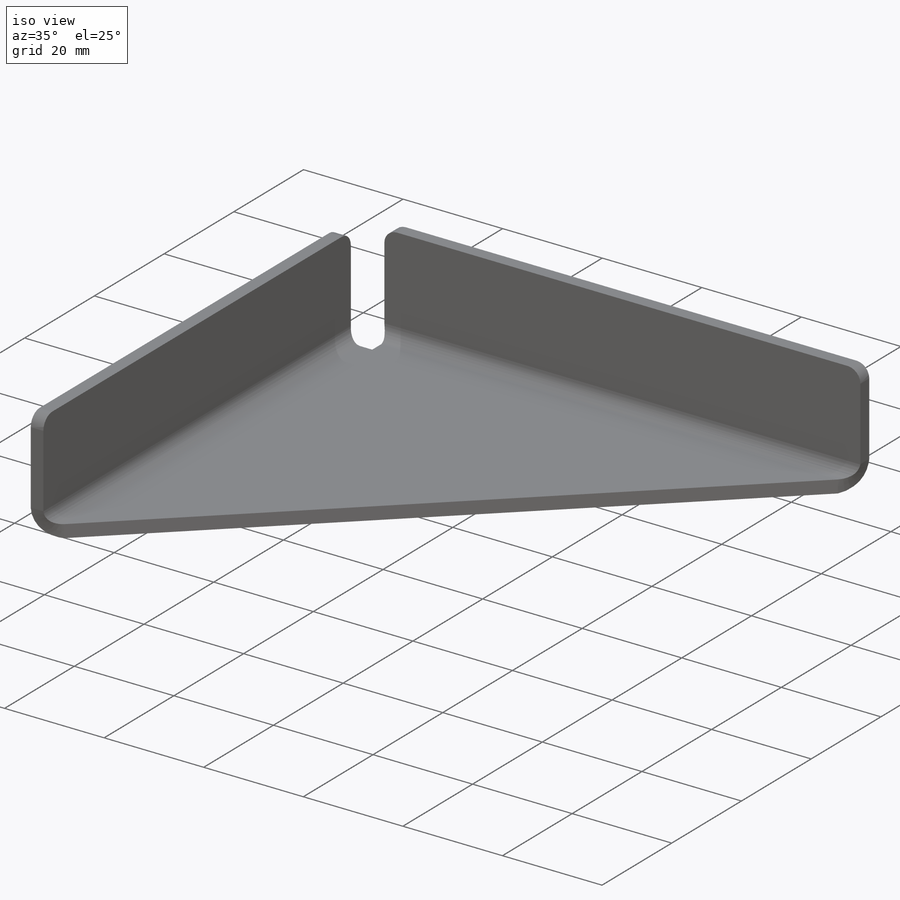
[diagram: iso view]
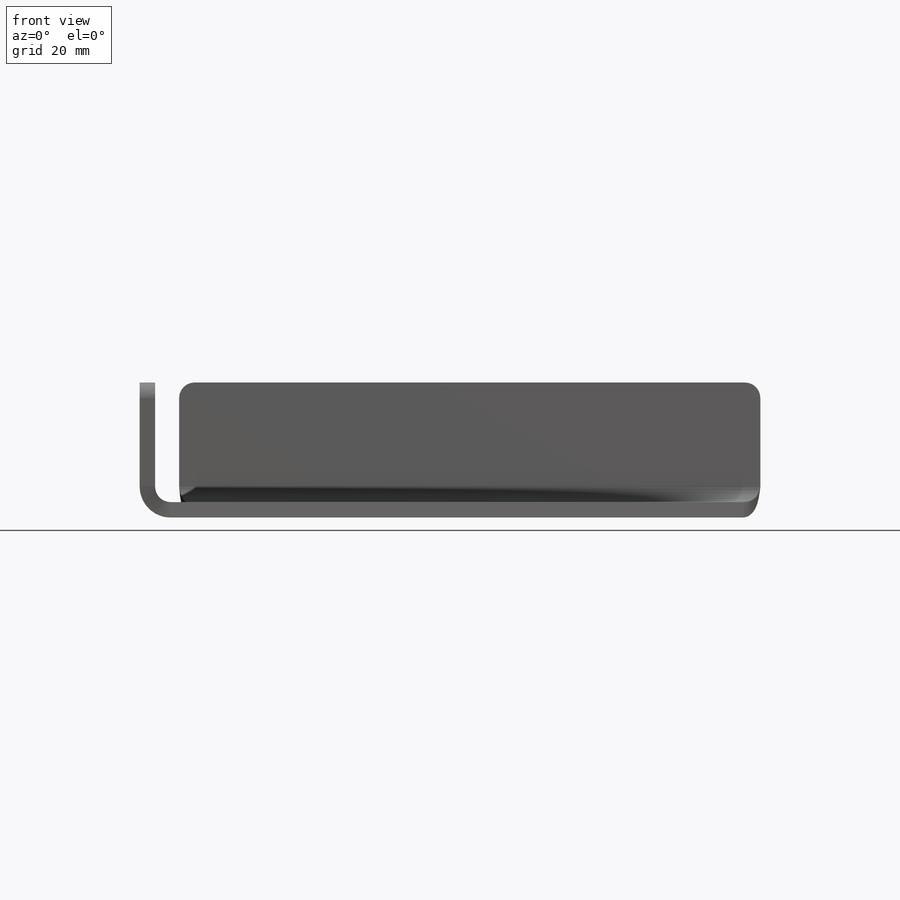
[diagram: front view]
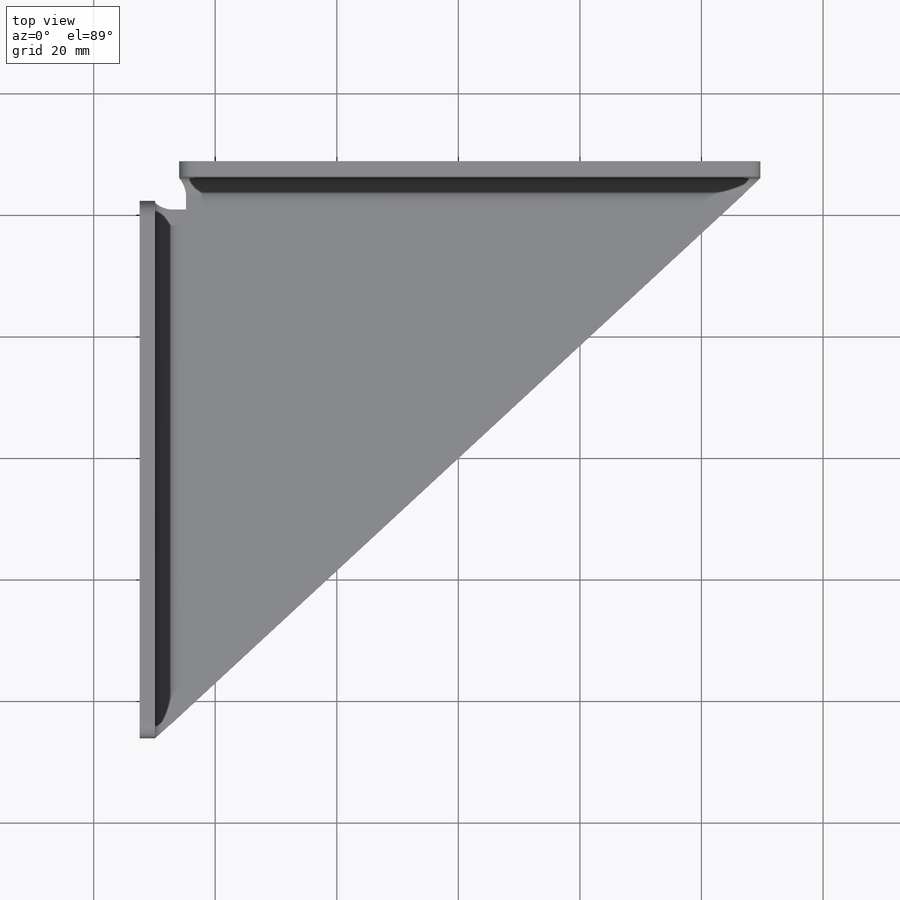
[diagram: top view]
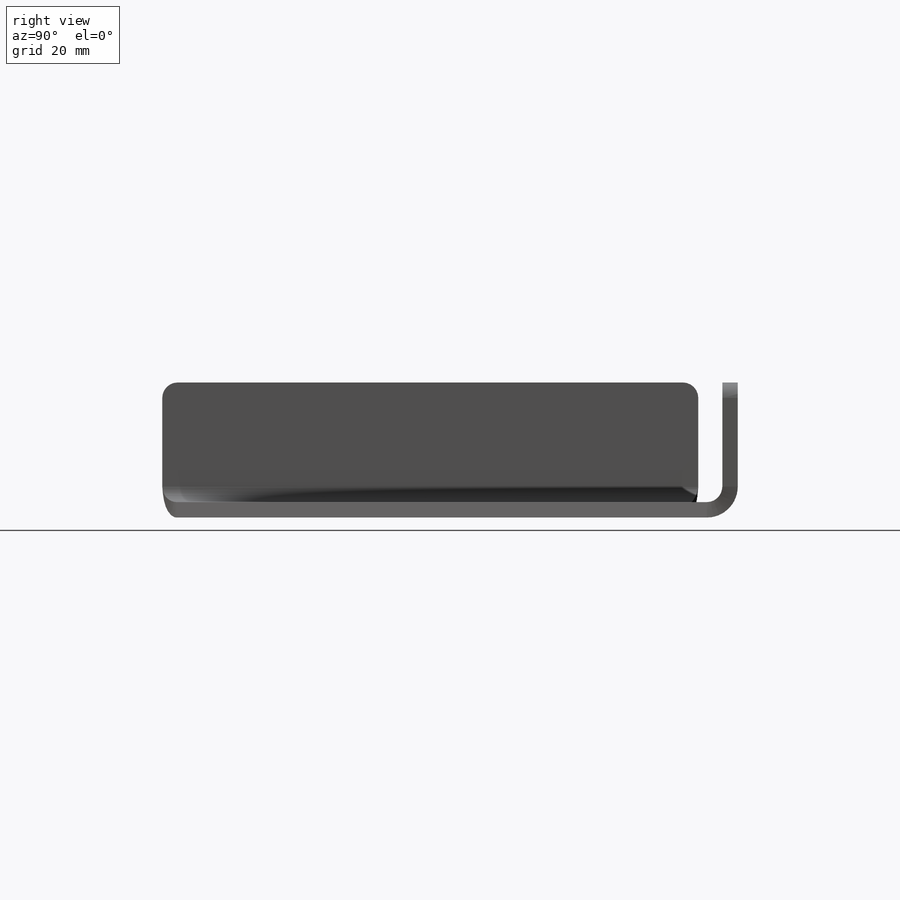
[diagram: right view]
SOLIDWORKS PART (.sldprt)
format: sldprt  version: not decoded by parser v0  size: 381,952 bytes
history: native  units: mm
features: sketch x12, hole x6, fillet x2, sheet_metal_op x2, material x1, extrude x1, shell x1 + 5 further entries (+12 scaffold rows collapsed; 1 parser-record rows omitted)
feature tree (43):
  scaffold x12  (default folders/planes/origin — collapsed)
  material  "6061-T6 (SS)"
  sketch  "Sketch1"  dims[D1=142.875mm]
  extrude  "Boss-Extrude1"  Depth=22.225mm
  shell  "Shell1"  Thickness=2.54mm SharpBend2=0
  parser-record x1  (decoder bookkeeping rows leaked as tree rows — omitted from the tree; the rows remain in map.json)
  sketch  "Sketch6"
  hole  "CSK for #8 Flat Head Machine Screw (100)2"  Diameter=4.4958mm Depth=2.546375mm
  sketch  "3DSketch1"
  sketch  "Sketch10"  dims[hole-wizard template sketch: 55 standard entries collapsed; hole parameters kept: c17.Thru Hole Depth=~2.546375mm c17.Near C'Sink Dia.=8.4328mm c17.D4=~3.666174mm c17.Near C'Sink Angle=100.0deg]
  hole  "Sketch Transformation3"  [1 undecoded]
  "Unfold2"
  hole  "Sketch Transformation4"  [1 undecoded]
  sketch  "Fold2"
  hole  "Sketch Transformation5"  [1 undecoded]
  fillet  "Fillet1"  Radius=2.54mm
  sketch  "Sketch11"  dims[c1.D1=~44.812198mm c2.D1=~42.38657deg]
  sketch  "Bend-Lines1"
  sketch  "Bounding-Box1"
  sheet_metal_op  "Sheet-Metal(2)"
  "Flat-Pattern(2)"
  sketch  "Bend-Lines2"
  sketch  "Bounding-Box2"
  "Flatten-<SharpBend2>1"
  hole  "Sketch Transformation1"  [1 undecoded]
  fillet  "Sheet-Metal(4)"  Radius=2.54mm
  sheet_metal_op  "Flat-Pattern(2)"
  sketch  "Bend-Lines2"
  sketch  "Bounding-Box2"
  "Flatten-<SharpBend1>1"
  "Flatten-<SharpBend2>1"
  hole  "Sketch Transformation1"  [1 undecoded]
decode coverage: 8 of 24 modeling features carry decoded parameters; 5 rows unclassified (native names shown)
note: ~ marks probable driven/reference dimensions
note: 5 parameter values undecoded
summary: no parameter record found for 5 features
note: suppression state not decoded; provenance and decode notes live in map.json
